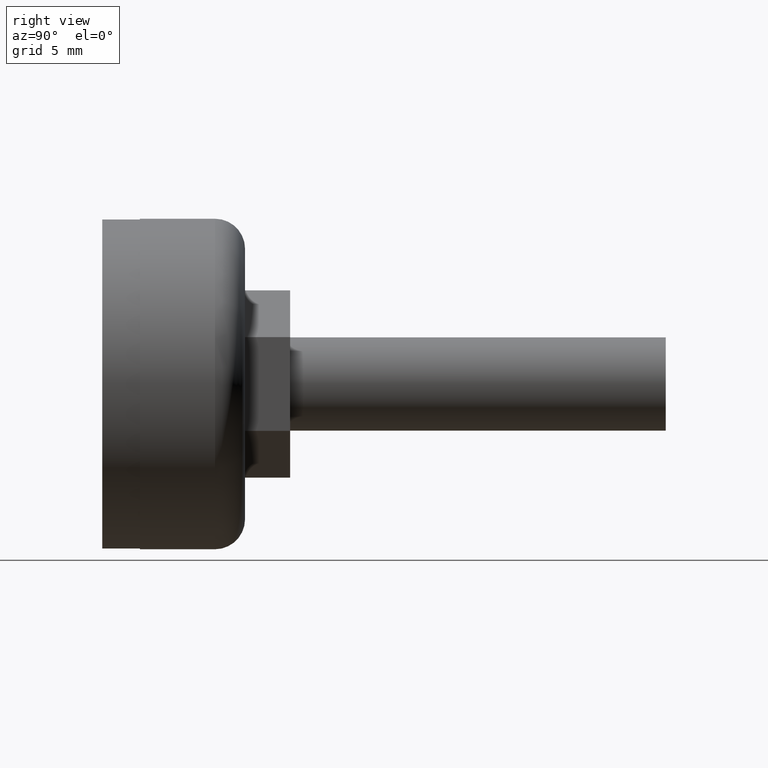
[diagram: clean part render]
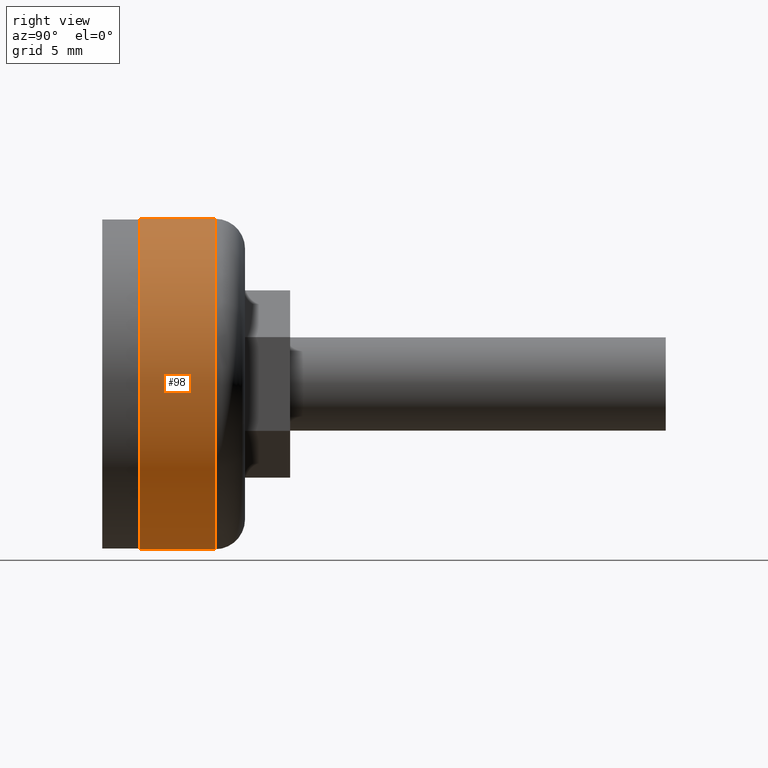
[diagram: same view with one face highlighted and labeled with its STEP entity id]
A machine part, right view. The second image highlights one B-rep face of the part: STEP entity #98.
In plain terms, the highlighted cylindrical surface (partial cylindrical patch) has radius 11 mm, axis along (-0, -1, -0).
Its self-contained STEP definition (entity closure, byte-faithful):
#13 = EDGE_CURVE ( 'NONE', #79, #66, #336, .T. ) ;
#16 = EDGE_CURVE ( 'NONE', #66, #81, #334, .T. ) ;
#30 = AXIS2_PLACEMENT_3D ( 'NONE', #158, #179, #166 ) ;
#33 = EDGE_CURVE ( 'NONE', #81, #70, #316, .T. ) ;
#36 = AXIS2_PLACEMENT_3D ( 'NONE', #577, #578, #551 ) ;
#38 = EDGE_CURVE ( 'NONE', #79, #70, #295, .T. ) ;
#51 = AXIS2_PLACEMENT_3D ( 'NONE', #563, #589, #595 ) ;
#66 = VERTEX_POINT ( 'NONE', #161 ) ;
#70 = VERTEX_POINT ( 'NONE', #157 ) ;
#79 = VERTEX_POINT ( 'NONE', #199 ) ;
#81 = VERTEX_POINT ( 'NONE', #170 ) ;
#98 = ADVANCED_FACE ( 'NONE', ( #312 ), #266, .T. ) ;
#157 = CARTESIAN_POINT ( 'NONE',  ( 0.0000000000000000000, 0.0000000000000000000, -11.00000000000000000 ) ) ;
#158 = CARTESIAN_POINT ( 'NONE',  ( 0.0000000000000000000, 7.000000000000000000, 0.0000000000000000000 ) ) ;
#161 = CARTESIAN_POINT ( 'NONE',  ( 1.347111479062088400E-015, 5.000000000000000000, 11.00000000000000000 ) ) ;
#166 = DIRECTION ( 'NONE',  ( 0.0000000000000000000, 0.0000000000000000000, -1.000000000000000000 ) ) ;
#170 = CARTESIAN_POINT ( 'NONE',  ( 1.347111479062088400E-015, 0.0000000000000000000, 11.00000000000000000 ) ) ;
#179 = DIRECTION ( 'NONE',  ( -0.0000000000000000000, -1.000000000000000000, -0.0000000000000000000 ) ) ;
#199 = CARTESIAN_POINT ( 'NONE',  ( 0.0000000000000000000, 5.000000000000000000, -11.00000000000000000 ) ) ;
#266 = CYLINDRICAL_SURFACE ( 'NONE', #30, 11.00000000000000000 ) ;
#295 = LINE ( 'NONE', #579, #299 ) ;
#299 = VECTOR ( 'NONE', #547, 1000.000000000000000 ) ;
#312 = FACE_OUTER_BOUND ( 'NONE', #517, .T. ) ;
#316 = CIRCLE ( 'NONE', #36, 11.00000000000000000 ) ;
#333 = VECTOR ( 'NONE', #582, 1000.000000000000000 ) ;
#334 = LINE ( 'NONE', #552, #333 ) ;
#336 = CIRCLE ( 'NONE', #51, 11.00000000000000000 ) ;
#456 = ORIENTED_EDGE ( 'NONE', *, *, #38, .F. ) ;
#466 = ORIENTED_EDGE ( 'NONE', *, *, #33, .T. ) ;
#486 = ORIENTED_EDGE ( 'NONE', *, *, #16, .T. ) ;
#494 = ORIENTED_EDGE ( 'NONE', *, *, #13, .T. ) ;
#517 = EDGE_LOOP ( 'NONE', ( #494, #486, #466, #456 ) ) ;
#547 = DIRECTION ( 'NONE',  ( -0.0000000000000000000, -1.000000000000000000, -0.0000000000000000000 ) ) ;
#551 = DIRECTION ( 'NONE',  ( 0.0000000000000000000, 0.0000000000000000000, 1.000000000000000000 ) ) ;
#552 = CARTESIAN_POINT ( 'NONE',  ( 1.347111479062088400E-015, 7.000000000000000000, 11.00000000000000000 ) ) ;
#563 = CARTESIAN_POINT ( 'NONE',  ( 0.0000000000000000000, 5.000000000000000000, 0.0000000000000000000 ) ) ;
#577 = CARTESIAN_POINT ( 'NONE',  ( 0.0000000000000000000, 0.0000000000000000000, 0.0000000000000000000 ) ) ;
#578 = DIRECTION ( 'NONE',  ( 0.0000000000000000000, 1.000000000000000000, 0.0000000000000000000 ) ) ;
#579 = CARTESIAN_POINT ( 'NONE',  ( 0.0000000000000000000, 7.000000000000000000, -11.00000000000000000 ) ) ;
#582 = DIRECTION ( 'NONE',  ( -0.0000000000000000000, -1.000000000000000000, -0.0000000000000000000 ) ) ;
#589 = DIRECTION ( 'NONE',  ( -0.0000000000000000000, -1.000000000000000000, -0.0000000000000000000 ) ) ;
#595 = DIRECTION ( 'NONE',  ( 0.0000000000000000000, 0.0000000000000000000, 1.000000000000000000 ) ) ;